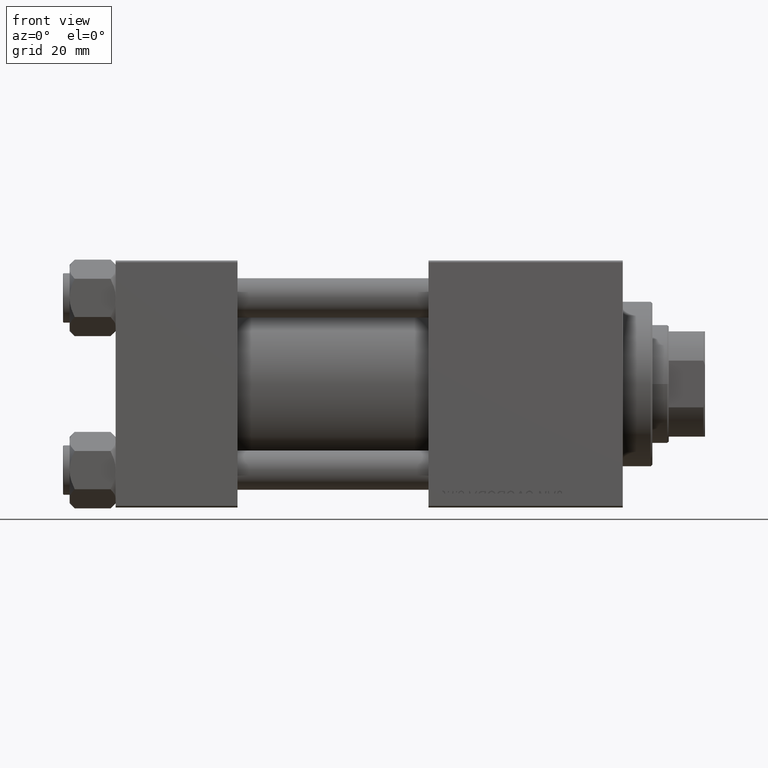
[diagram: clean part render]
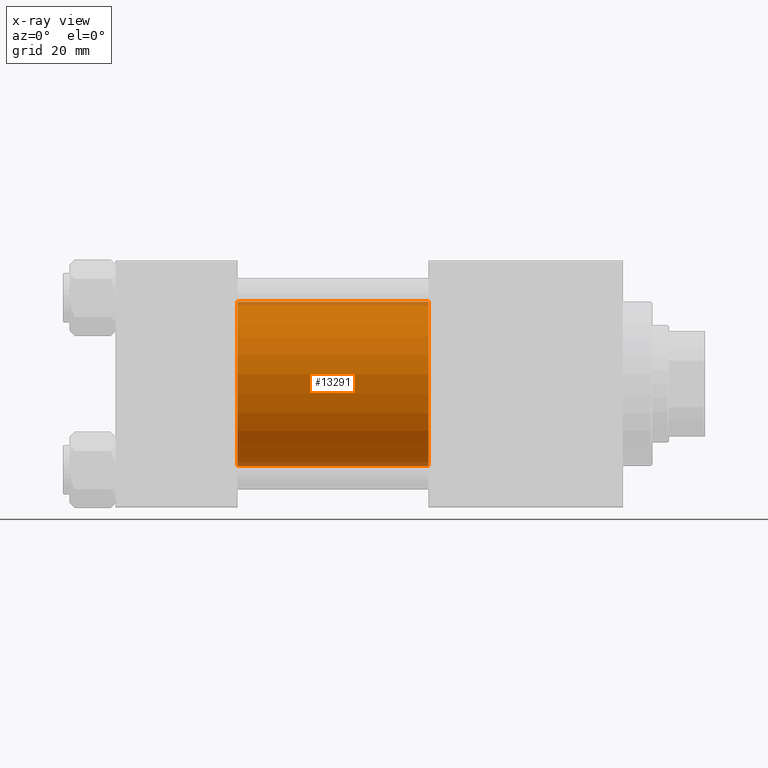
[diagram: x-ray — body ghosted, one internal face saturated and labeled with its STEP entity id]
A machine part, front view, then the same camera in x-ray: the body is ghosted and one INTERNAL B-rep face — a face not visible from any outside direction — is saturated and labeled: STEP entity #13291.
In plain terms, the highlighted cylindrical surface (partial cylindrical patch) has radius 25 mm, axis along (-1, -0, -0).
Its self-contained STEP definition (entity closure, byte-faithful):
#1154 = VECTOR ( 'NONE', #16095, 1000.000000000000000 ) ;
#3295 = DIRECTION ( 'NONE',  ( -1.000000000000000000, -0.000000000000000000, -0.000000000000000000 ) ) ;
#4110 = ORIENTED_EDGE ( 'NONE', *, *, #14177, .F. ) ;
#4971 = DIRECTION ( 'NONE',  ( 1.000000000000000000, 0.000000000000000000, 0.000000000000000000 ) ) ;
#5961 = CARTESIAN_POINT ( 'NONE',  ( 95.00000000000000000, -2.602085213965210642E-15, 0.000000000000000000 ) ) ;
#5980 = CARTESIAN_POINT ( 'NONE',  ( 37.00000000000000000, 4.595317839031718093E-16, -25.00000000000000000 ) ) ;
#7180 = ORIENTED_EDGE ( 'NONE', *, *, #41298, .T. ) ;
#7351 = LINE ( 'NONE', #10413, #35757 ) ;
#8190 = CARTESIAN_POINT ( 'NONE',  ( 37.00000000000000000, -2.602085213965210642E-15, 0.000000000000000000 ) ) ;
#8762 = CIRCLE ( 'NONE', #42812, 25.00000000000000000 ) ;
#10334 = CARTESIAN_POINT ( 'NONE',  ( 37.00000000000000000, -2.602085213965210642E-15, 25.00000000000000000 ) ) ;
#10413 = CARTESIAN_POINT ( 'NONE',  ( 95.00000000000000000, 4.595317839031718093E-16, -25.00000000000000000 ) ) ;
#12187 = EDGE_LOOP ( 'NONE', ( #7180, #49255, #40675, #4110 ) ) ;
#13291 = ADVANCED_FACE ( 'NONE', ( #29558 ), #18393, .F. ) ;
#13295 = AXIS2_PLACEMENT_3D ( 'NONE', #34115, #22696, #22197 ) ;
#14177 = EDGE_CURVE ( 'NONE', #42045, #34492, #19909, .T. ) ;
#16095 = DIRECTION ( 'NONE',  ( -1.000000000000000000, -0.000000000000000000, -0.000000000000000000 ) ) ;
#18393 = CYLINDRICAL_SURFACE ( 'NONE', #13295, 25.00000000000000000 ) ;
#19909 = LINE ( 'NONE', #27776, #1154 ) ;
#20574 = VERTEX_POINT ( 'NONE', #5980 ) ;
#21071 = EDGE_CURVE ( 'NONE', #49104, #20574, #7351, .T. ) ;
#21205 = DIRECTION ( 'NONE',  ( 0.000000000000000000, 0.000000000000000000, -1.000000000000000000 ) ) ;
#22197 = DIRECTION ( 'NONE',  ( 0.000000000000000000, 0.000000000000000000, 1.000000000000000000 ) ) ;
#22696 = DIRECTION ( 'NONE',  ( -1.000000000000000000, -0.000000000000000000, -0.000000000000000000 ) ) ;
#27776 = CARTESIAN_POINT ( 'NONE',  ( 95.00000000000000000, -2.602085213965210642E-15, 25.00000000000000000 ) ) ;
#28517 = EDGE_CURVE ( 'NONE', #34492, #20574, #43325, .T. ) ;
#29558 = FACE_OUTER_BOUND ( 'NONE', #12187, .T. ) ;
#34115 = CARTESIAN_POINT ( 'NONE',  ( 95.00000000000000000, -2.602085213965210642E-15, 0.000000000000000000 ) ) ;
#34492 = VERTEX_POINT ( 'NONE', #10334 ) ;
#34851 = DIRECTION ( 'NONE',  ( 0.000000000000000000, 0.000000000000000000, -1.000000000000000000 ) ) ;
#35757 = VECTOR ( 'NONE', #3295, 1000.000000000000000 ) ;
#39435 = DIRECTION ( 'NONE',  ( 1.000000000000000000, 0.000000000000000000, 0.000000000000000000 ) ) ;
#40675 = ORIENTED_EDGE ( 'NONE', *, *, #28517, .F. ) ;
#41231 = CARTESIAN_POINT ( 'NONE',  ( 95.00000000000000000, 4.595317839031718093E-16, -25.00000000000000000 ) ) ;
#41298 = EDGE_CURVE ( 'NONE', #42045, #49104, #8762, .T. ) ;
#42045 = VERTEX_POINT ( 'NONE', #44192 ) ;
#42812 = AXIS2_PLACEMENT_3D ( 'NONE', #5961, #4971, #21205 ) ;
#43325 = CIRCLE ( 'NONE', #44895, 25.00000000000000000 ) ;
#44192 = CARTESIAN_POINT ( 'NONE',  ( 95.00000000000000000, -2.602085213965210642E-15, 25.00000000000000000 ) ) ;
#44895 = AXIS2_PLACEMENT_3D ( 'NONE', #8190, #39435, #34851 ) ;
#49104 = VERTEX_POINT ( 'NONE', #41231 ) ;
#49255 = ORIENTED_EDGE ( 'NONE', *, *, #21071, .T. ) ;